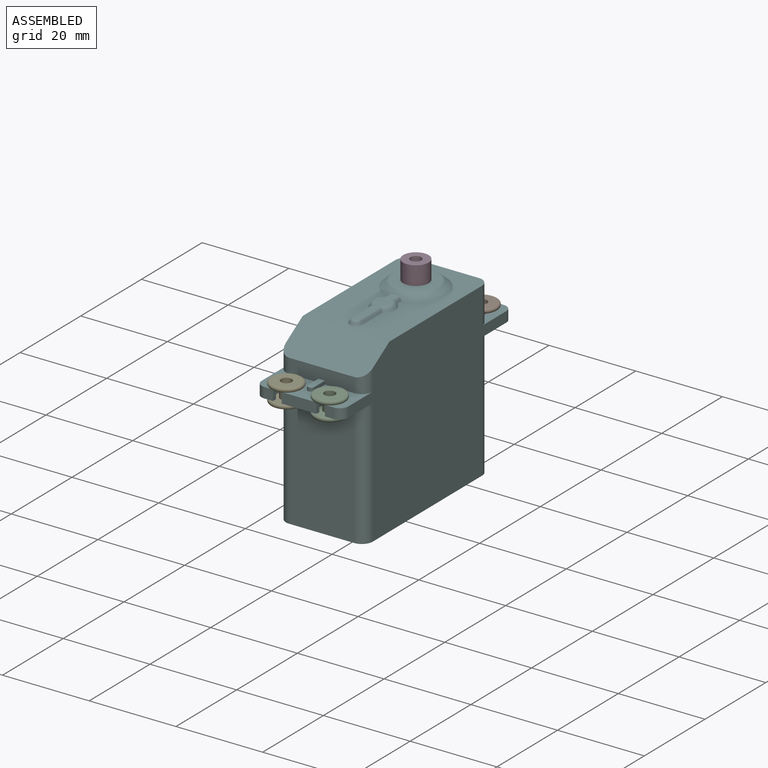
[diagram: assembled view]
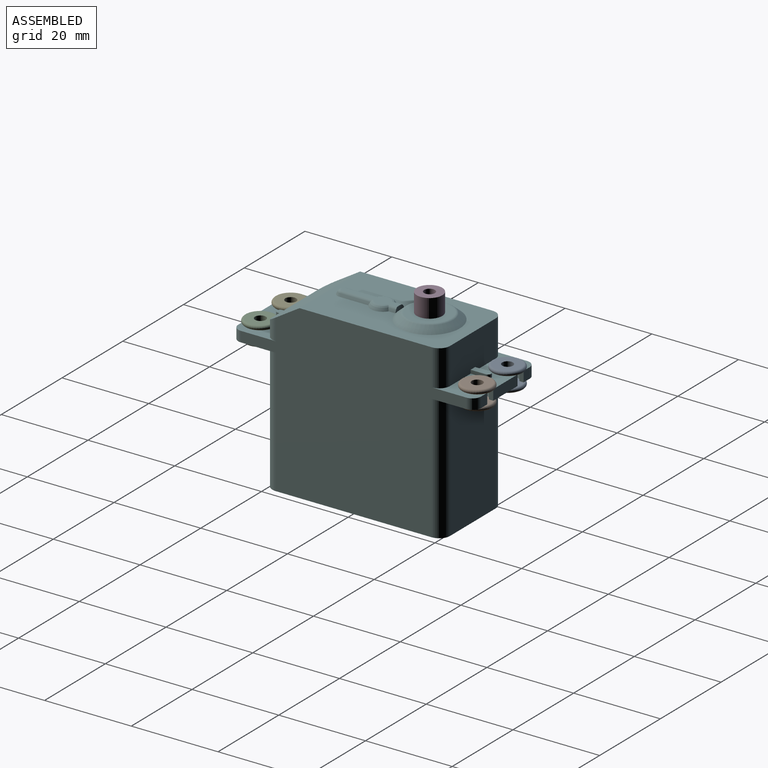
[diagram: assembled view, second angle]
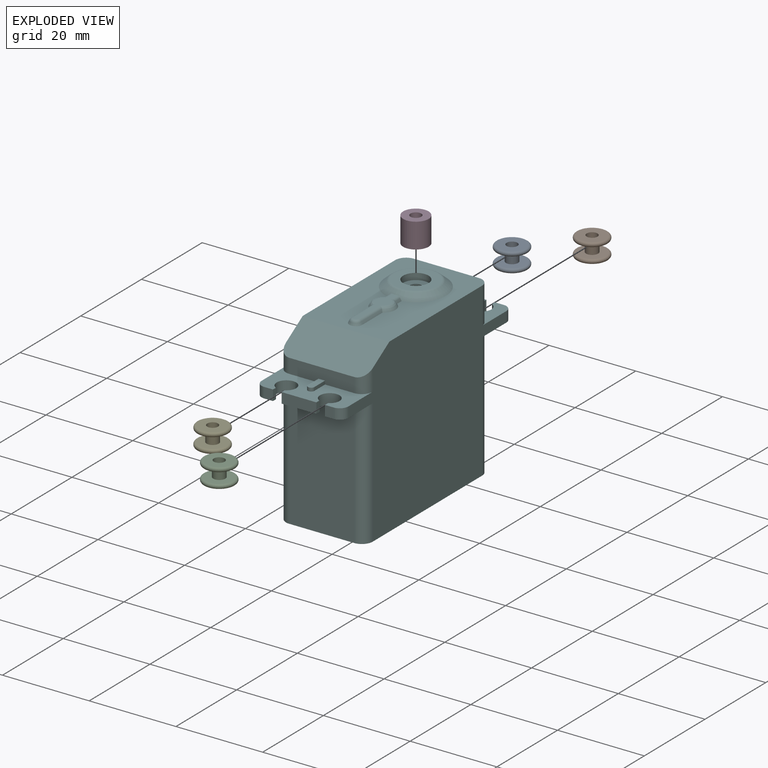
[diagram: exploded view]
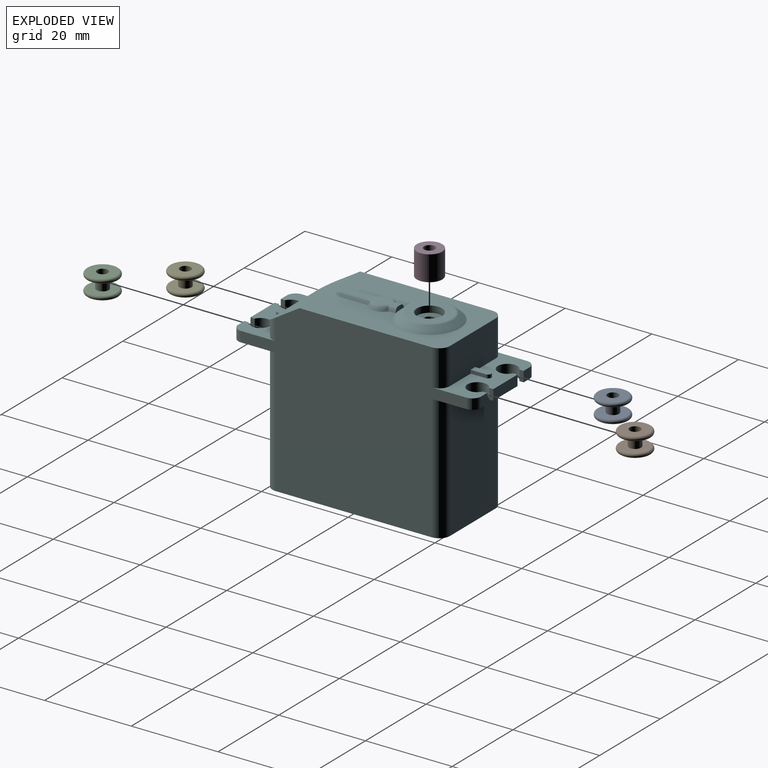
[diagram: exploded view, second angle]
ASSEMBLY  parts=6 mates=5
PART A: 8 faces, bbox 7.9x7.9x4.5 mm
  f0: cylinder r=1.25mm len=4.5mm, axis (0,0,-1), area 35.3mm2, adj f1,f5
  f1: plane 6.3x6.3mm, normal (0,0,1), area 26.3mm2, adj f0,f6
  f2: plane 6.3x6.3mm, normal (0,0,-1), area 25mm2, adj f3,f6
  f3: cylinder r=1.4mm len=2.8mm, axis (0,0,-1), area 22mm2, adj f2,f4
  f4: plane 6.3x6.3mm, normal (0,0,1), area 25mm2, adj f3,f7
  f5: plane 6.3x6.3mm, normal (0,0,-1), area 26.3mm2, adj f0,f7
  f6: torus R=3.15mm, axis (0,0,1), area 34.2mm2, adj f1,f2
  f7: torus R=3.15mm, axis (0,0,1), area 34.2mm2, adj f4,f5
PART B: same geometry as A
PART C: same geometry as A
PART D: 4 faces, bbox 5.9x5.9x5.8 mm
  f0: cylinder r=2.94mm len=5.88mm, axis (0,0,-1), area 107.1mm2, adj f1,f2
  f1: plane 5.88x5.88mm, normal (0,0,1), area 22.2mm2, adj f0,f3
  f2: plane 5.88x5.88mm, normal (0,0,-1), area 22.2mm2, adj f0,f3
  f3: cylinder r=1.25mm len=5.8mm, axis (0,0,1), area 45.6mm2, adj f1,f2
PART E: same geometry as A
PART F: 74 faces, bbox 20.7x56.7x41.8 mm
  f0: plane 33.01x20.01mm, normal (0,0,1), area 452.6mm2, adj f2,f16,f17,f20,f21,f22,f52,f56
  f1: plane 20x10mm, normal (0,0,1), area 109.7mm2, adj f5,f6,f16,f17,f18,f23,f24,f26
  f2: plane 15x8.35mm, normal (0,1,0), area 124.1mm2, adj f0,f7,f21,f22,f44,f45,f46
  f3: plane 8x2.4mm, normal (0,1,0), area 19.2mm2, adj f7,f8,f39,f41
  f4: plane 2.4x2mm, normal (0,1,0), area 4.8mm2, adj f7,f8,f27,f38
  f5: plane 2.4x2mm, normal (0,-1,0), area 4.8mm2, adj f1,f9,f29,f34
  f6: plane 8x2.4mm, normal (0,-1,0), area 19.2mm2, adj f1,f9,f31,f36
  f7: plane 20x10mm, normal (0,0,1), area 109.7mm2, adj f2,f3,f4,f16,f17,f21,f22,f25
  f8: plane 20x10mm, normal (0,0,-1), area 115.9mm2, adj f3,f4,f13,f14,f15,f16,f17,f25
  f9: plane 20x10mm, normal (0,0,-1), area 115.9mm2, adj f5,f6,f10,f11,f12,f16,f17,f26
  f10: plane 28.85x15mm, normal (0,-1,0), area 432.7mm2, adj f9,f11,f12,f19
  f11: cylinder r=2.5mm len=28.85mm, axis (0,0,1), area 113.3mm2, adj f9,f10,f16,f19
  f12: cylinder r=2.5mm len=28.85mm, axis (0,0,-1), area 113.3mm2, adj f9,f10,f17,f19
  f13: plane 28.85x15mm, normal (0,1,0), area 432.7mm2, adj f8,f14,f15,f19
  f14: cylinder r=2.5mm len=28.85mm, axis (0,0,1), area 113.3mm2, adj f8,f13,f17,f19
  f15: cylinder r=2.5mm len=28.85mm, axis (0,0,-1), area 113.3mm2, adj f8,f13,f16,f19
  f16: plane 52x39.6mm, normal (-1,0,0), area 1454.5mm2, adj f0,f1,f7,f8,f9,f11,f15,f19
  f17: plane 52x39.6mm, normal (1,0,0), area 1454.5mm2, adj f0,f1,f7,f8,f9,f12,f14,f19
  f18: plane 15x3.35mm, normal (0,-1,0), area 49mm2, adj f1,f20,f23,f24,f48,f49,f50
  f19: plane 41x20mm, normal (0,0,-1), area 814.6mm2, adj f10,f11,f12,f13,f14,f15,f16,f17
  f20: plane 20.66x8.66mm, normal (0,-0.53,0.85), area 185.5mm2, adj f0,f16,f17,f18,f23,f24
  f21: cylinder r=2.5mm len=8.35mm, axis (0,0,1), area 32.8mm2, adj f0,f2,f7,f17
  f22: cylinder r=2.5mm len=8.35mm, axis (0,0,-1), area 32.8mm2, adj f0,f2,f7,f16
  f23: cylinder r=2.5mm len=4.91mm, axis (0,0,1), area 16.2mm2, adj f1,f16,f18,f20
  f24: cylinder r=2.5mm len=4.91mm, axis (0,0,-1), area 16.2mm2, adj f1,f17,f18,f20
  f25: plane 2.4x2mm, normal (0,1,0), area 4.8mm2, adj f7,f8,f28,f42
  f26: plane 2.4x2mm, normal (0,-1,0), area 4.8mm2, adj f1,f9,f30,f33
  f27: cylinder r=2mm len=2.4mm, axis (0,0,1), area 7.5mm2, adj f4,f7,f8,f16
  f28: cylinder r=2mm len=2.4mm, axis (0,0,1), area 7.5mm2, adj f7,f8,f17,f25
  f29: cylinder r=2mm len=2.4mm, axis (0,0,-1), area 7.5mm2, adj f1,f5,f9,f16
  f30: cylinder r=2mm len=2.4mm, axis (0,0,-1), area 7.5mm2, adj f1,f9,f17,f26
  f31: plane 2.4x0.98mm, normal (1,0,0), area 2.4mm2, adj f1,f6,f9,f32
  f32: cylinder r=2.25mm len=4.5mm, axis (0,0,1), area 29mm2, adj f1,f9,f31,f33
  f33: plane 2.4x0.98mm, normal (-1,0,0), area 2.4mm2, adj f1,f9,f26,f32
  f34: plane 2.4x0.98mm, normal (1,0,0), area 2.4mm2, adj f1,f5,f9,f35
  f35: cylinder r=2.25mm len=4.5mm, axis (0,0,1), area 29mm2, adj f1,f9,f34,f36
  f36: plane 2.4x0.98mm, normal (-1,0,0), area 2.4mm2, adj f1,f6,f9,f35
  f37: cylinder r=2.25mm len=4.5mm, axis (0,0,1), area 29mm2, adj f7,f8,f38,f39
  f38: plane 2.4x0.98mm, normal (1,0,0), area 2.4mm2, adj f4,f7,f8,f37
  f39: plane 2.4x0.98mm, normal (-1,0,0), area 2.4mm2, adj f3,f7,f8,f37
  f40: cylinder r=2.25mm len=4.5mm, axis (0,0,1), area 29mm2, adj f7,f8,f41,f42
  f41: plane 2.4x0.98mm, normal (1,0,0), area 2.4mm2, adj f3,f7,f8,f40
  f42: plane 2.4x0.98mm, normal (-1,0,0), area 2.4mm2, adj f7,f8,f25,f40
  f43: cylinder r=0.75mm len=1.5mm, axis (0,0,-1), area 1.9mm2, adj f7,f44,f45,f46
  f44: plane 3.5x0.8mm, normal (-1,0,0), area 2.8mm2, adj f2,f7,f43,f46
  f45: plane 3.5x0.8mm, normal (1,0,0), area 2.8mm2, adj f2,f7,f43,f46
  f46: plane 4.25x1.5mm, normal (0,0,1), area 6.1mm2, adj f2,f43,f44,f45
  f47: cylinder r=0.75mm len=1.5mm, axis (0,0,-1), area 1.9mm2, adj f1,f48,f49,f50
  f48: plane 3.5x0.8mm, normal (1,0,0), area 2.8mm2, adj f1,f18,f47,f50
  f49: plane 3.5x0.8mm, normal (-1,0,0), area 2.8mm2, adj f1,f18,f47,f50
  f50: plane 4.25x1.5mm, normal (0,0,1), area 6.1mm2, adj f18,f47,f48,f49
  f51: plane 9.95x9.95mm, normal (0,0,1), area 50.5mm2, adj f54,f71
  f52: cone r=5.25mm half-angle=49.4deg, axis (0,0,-1), area 79.4mm2, adj f0,f63,f71
  f53: plane 5.88x5.88mm, normal (0,0,1), area 22.2mm2, adj f54,f73
  f54: cylinder r=2.94mm len=5.88mm, axis (0,0,1), area 27.7mm2, adj f51,f53
  f55: plane 13.31x3.56mm, normal (0,0,1), area 20.3mm2, adj f63,f64,f65,f66,f67,f68,f69,f70
  f56: plane 1.78x0.59mm, normal (0.89,0,0.45), area 1.1mm2, adj f0,f57,f63,f64
  f57: bspline ~4.81x1.85mm, area 4mm2, adj f0,f56,f58,f64,f65,f66
  f58: plane 6.87x0.59mm, normal (0.89,0,0.45), area 4.4mm2, adj f0,f57,f59,f66
  f59: cone r=1mm half-angle=26.6deg, axis (0,0,-1), area 2.8mm2, adj f0,f58,f60,f68
  f60: plane 6.87x0.59mm, normal (-0.89,0,0.45), area 4.4mm2, adj f0,f59,f61,f70
  f61: bspline ~4.81x1.85mm, area 4mm2, adj f0,f60,f62,f67,f69,f70
  f62: plane 1.78x0.59mm, normal (-0.89,0,0.45), area 1.1mm2, adj f0,f61,f63,f67
  f63: bspline ~3x1mm, area 2.3mm2, adj f52,f55,f56,f62,f64,f67
  f64: cylinder r=0.75mm len=2.13mm, axis (0,1,0), area 1.6mm2, adj f55,f56,f57,f63,f65
  f65: bspline ~4.87x2.25mm, area 3.7mm2, adj f55,f57,f64,f66
  f66: cylinder r=0.75mm len=7.27mm, axis (0,1,0), area 5.9mm2, adj f55,f57,f58,f65,f68
  f67: cylinder r=0.75mm len=2.13mm, axis (0,-1,0), area 1.6mm2, adj f55,f61,f62,f63,f69
  f68: torus R=0.54mm, axis (0,0,1), area 2.4mm2, adj f55,f59,f66,f70
  f69: bspline ~4.87x2.25mm, area 3.7mm2, adj f55,f61,f67,f70
  f70: cylinder r=0.75mm len=7.27mm, axis (0,-1,0), area 5.9mm2, adj f55,f60,f61,f68,f69
  f71: torus R=4.97mm, axis (0,0,1), area 17.5mm2, adj f51,f52
  f72: cone r=0mm half-angle=59deg, axis (0,0,1), area 5.7mm2, adj f73
  f73: cylinder r=1.25mm len=4.2mm, axis (0,0,1), area 33mm2, adj f53,f72
PLACE A t=(-26.5,-23.83,-12.52)mm
PLACE B t=(-16.5,-23.83,-12.52)mm
PLACE C t=(-16.5,-73.83,-12.52)mm
PLACE D t=(-55.85,-48.83,1.84)mm
PLACE E t=(-26.5,-73.83,-12.52)mm
PLACE F t=(-55.85,-48.83,1.84)mm
MATE fastened E.f0 <-> F.f35  axis (0,0,-1) through (-60.85,-73.83,33.09)mm
MATE fastened C.f0 <-> F.f32  axis (0,0,-1) through (-50.85,-73.83,33.09)mm
MATE fastened A.f0 <-> F.f37  axis (0,0,-1) through (-60.85,-23.83,33.09)mm
MATE fastened B.f0 <-> F.f40  axis (0,0,-1) through (-50.85,-23.83,33.09)mm
MATE revolute D.f0 <-> F.f52  axis (0,0,-1) through (-55.85,-38.33,41.44)mm
